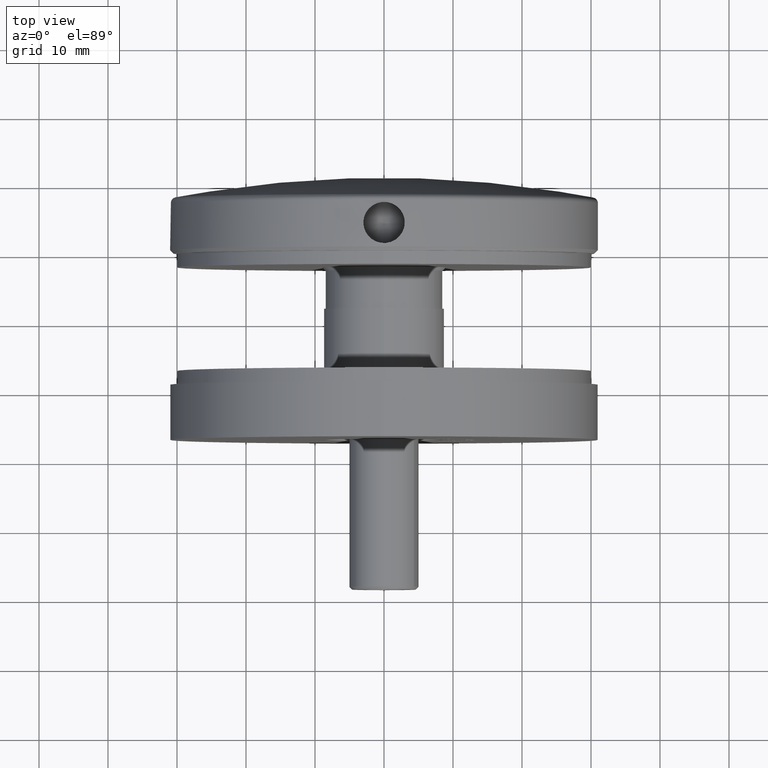
[diagram: clean part render]
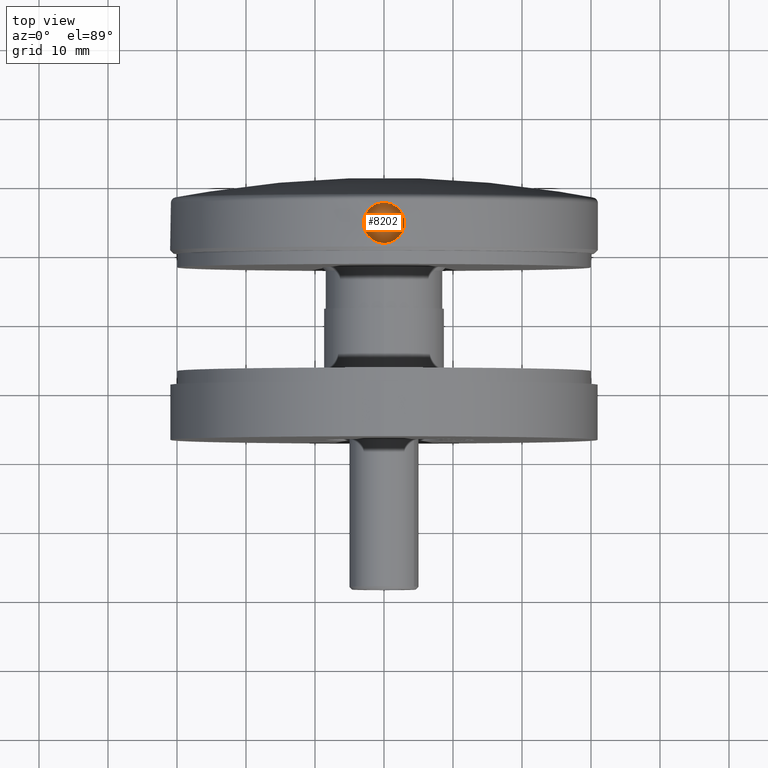
[diagram: same view with one face highlighted and labeled with its STEP entity id]
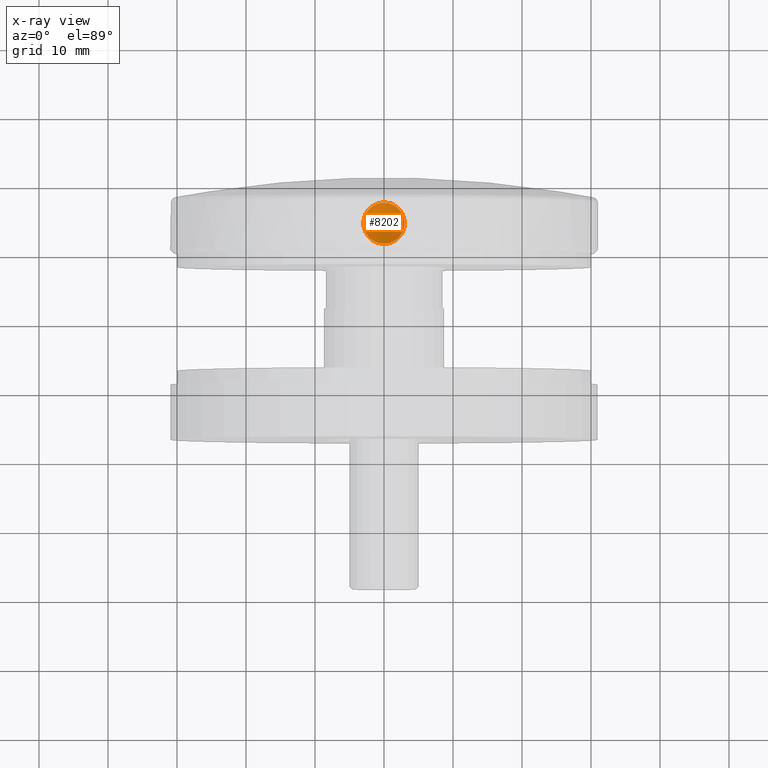
[diagram: x-ray of the same camera — body ghosted, the highlighted face saturated]
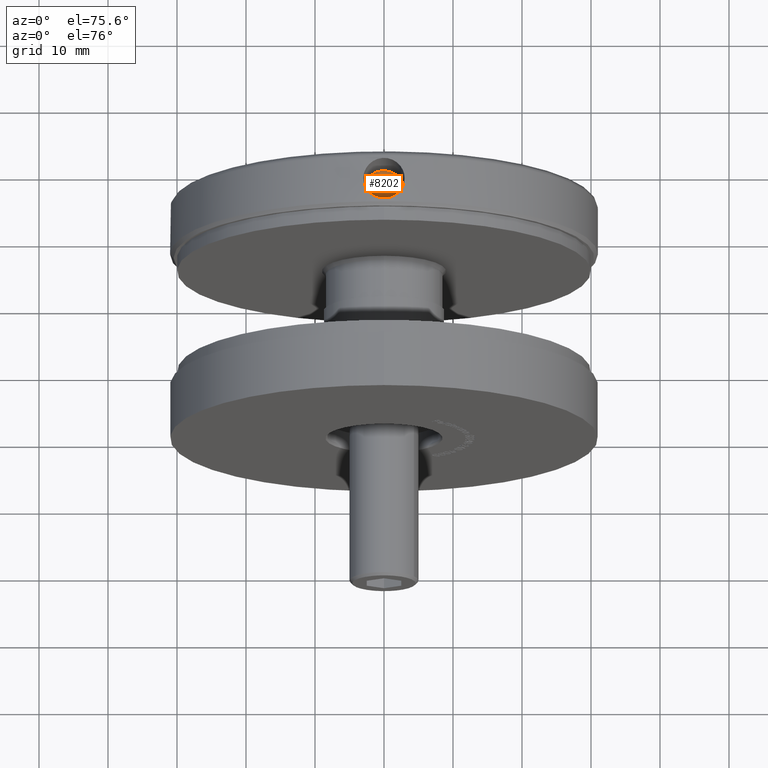
[diagram: same view with one face highlighted and labeled with its STEP entity id]
A machine part, top view. The second image highlights one B-rep face of the part: STEP entity #8202.
The next image is the same camera in x-ray: the body ghosted, the highlighted face saturated — about 0% of this face is hidden behind the body in this view.
A second angle (auxiliary view) of the same face is appended — the face is thin or edge-on in the first view.
In plain terms, the highlighted conical surface has half-angle 59 deg.
Its self-contained STEP definition (entity closure, byte-faithful):
#1229 = DIRECTION ( 'NONE',  ( -0.000000000000000000, -0.000000000000000000, 1.000000000000000000 ) ) ;
#1239 = VERTEX_POINT ( 'NONE', #11159 ) ;
#1506 = CONICAL_SURFACE ( 'NONE', #10863, 2.999999999999987566, 1.029744258676654312 ) ;
#2413 = DIRECTION ( 'NONE',  ( -0.000000000000000000, -0.000000000000000000, 1.000000000000000000 ) ) ;
#2443 = EDGE_LOOP ( 'NONE', ( #11709 ) ) ;
#2838 = DIRECTION ( 'NONE',  ( 1.000000000000000000, 0.000000000000000000, 0.000000000000000000 ) ) ;
#8202 = ADVANCED_FACE ( 'NONE', ( #13216 ), #1506, .F. ) ;
#10863 = AXIS2_PLACEMENT_3D ( 'NONE', #13931, #1229, #16773 ) ;
#10879 = CARTESIAN_POINT ( 'NONE',  ( -9.462128050783531502E-16, 3.995000000000078266, 23.49999999999999289 ) ) ;
#11159 = CARTESIAN_POINT ( 'NONE',  ( 2.999999999999986677, 3.995000000000078266, 23.49999999999999289 ) ) ;
#11709 = ORIENTED_EDGE ( 'NONE', *, *, #12652, .T. ) ;
#12652 = EDGE_CURVE ( 'NONE', #1239, #1239, #16716, .T. ) ;
#13216 = FACE_OUTER_BOUND ( 'NONE', #2443, .T. ) ;
#13931 = CARTESIAN_POINT ( 'NONE',  ( -9.462128050783531502E-16, 3.995000000000078266, 23.49999999999999289 ) ) ;
#16716 = CIRCLE ( 'NONE', #17675, 2.999999999999987566 ) ;
#16773 = DIRECTION ( 'NONE',  ( 1.000000000000000000, 0.000000000000000000, 0.000000000000000000 ) ) ;
#17675 = AXIS2_PLACEMENT_3D ( 'NONE', #10879, #2413, #2838 ) ;